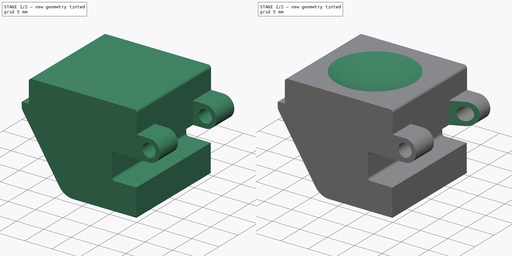
[diagram: build sequence overview — one tinted view per stage of 2, left to right]
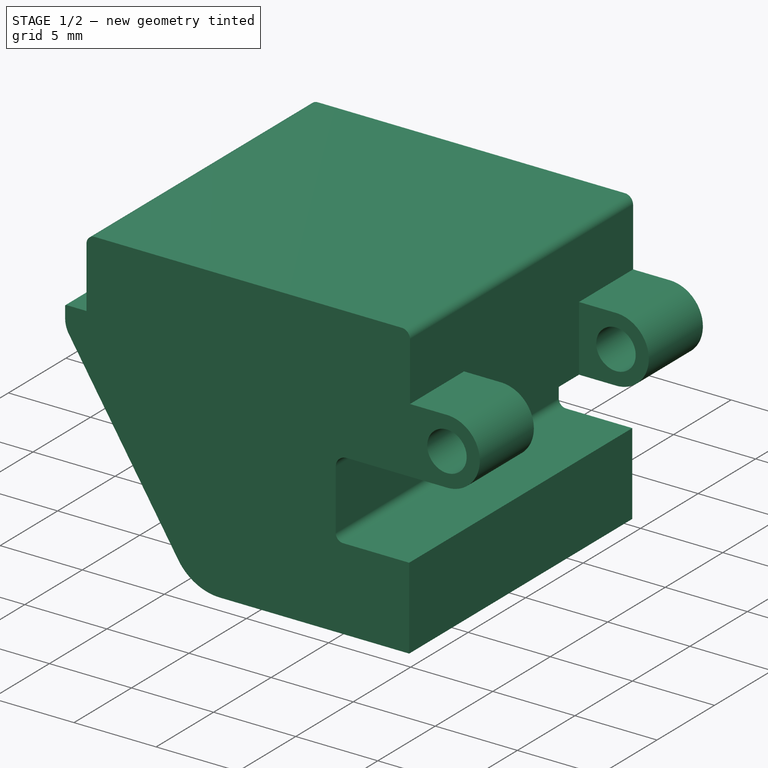
[diagram: stage 1 of 2 — iso view after this stage's code; geometry added in this stage tinted green]
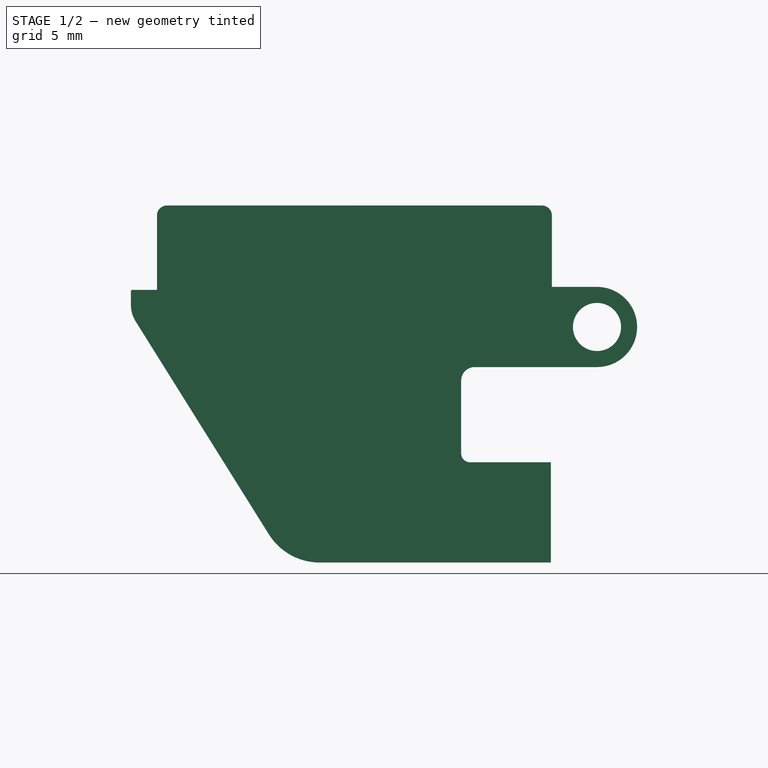
[diagram: stage 1 of 2 — front view after this stage's code; geometry added in this stage tinted green]
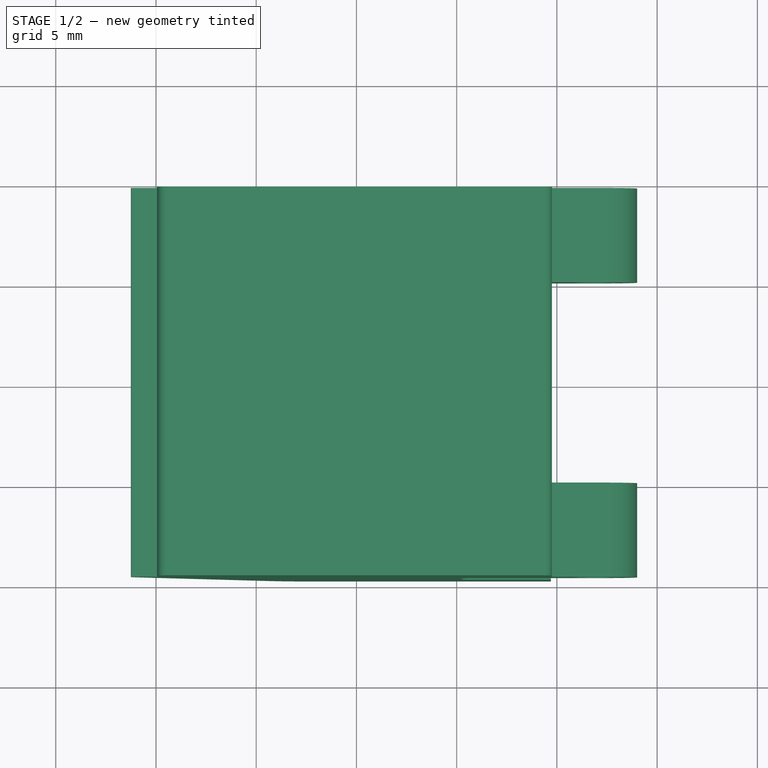
[diagram: stage 1 of 2 — top view after this stage's code; geometry added in this stage tinted green]
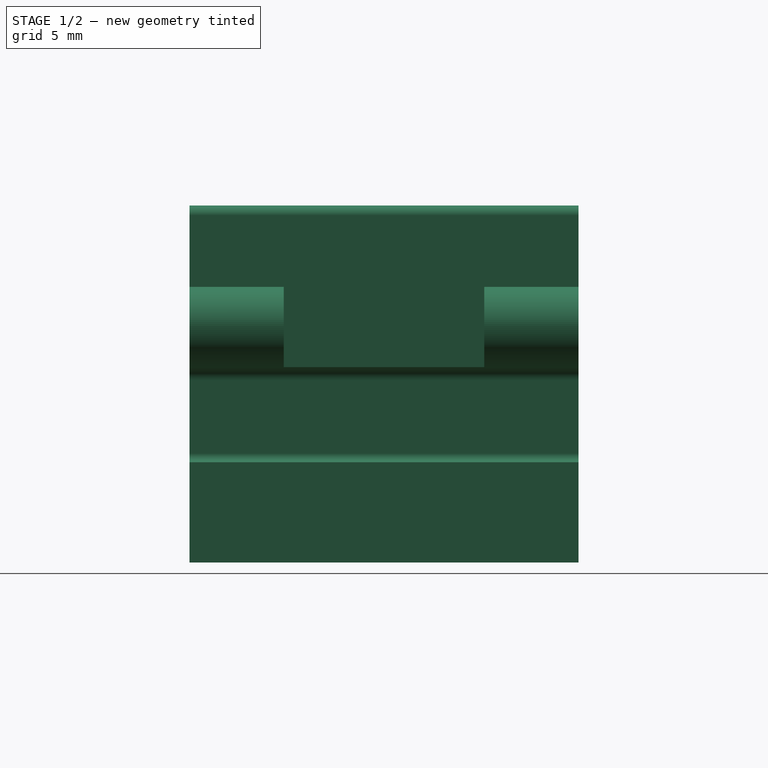
[diagram: stage 1 of 2 — right view after this stage's code; geometry added in this stage tinted green]
FCSTD DOCUMENT  (FreeCAD 1.0R39109 (Git))
Label: button
License: All rights reserved
LicenseURL: https://en.wikipedia.org/wiki/All_rights_reserved
objects: Sketcher::SketchObject×4, PartDesign::Pocket×2, PartDesign::Pad×1, PartDesign::Line×1, PartDesign::Groove×1, PartDesign::Body×1
note: 22 computed .brp shape members not serialized (recipe doc carries the construction recipe); baked Part::Feature solids carry a one-line shape summary decoded from their .brp

FEATURE [Sketcher::SketchObject] Sketch
  ArcFitTolerance = 1e-06
  AttachmentSupport = -> [XZ_Plane]
  FullyConstrained = false
  MakeInternals = false
  MapMode = 5
  Placement = pos=(0,0,0) rot=(1,0,0;1.5708rad)
  sketch-geometry (30):
    g0: LineSegment StartX=-0.75 StartY=3.81199 StartZ=0 EndX=-19.45 EndY=3.81199 EndZ=0
    g1: LineSegment StartX=-19.95 StartY=3.31199 StartZ=0 EndX=-19.95 EndY=-0.4 EndZ=0
    g2: LineSegment StartX=-19.95 StartY=-0.4 StartZ=0 EndX=-21.1852 EndY=-0.4 EndZ=0
    g3: LineSegment StartX=-21.25 StartY=-0.464826 StartZ=0 EndX=-21.25 EndY=-1.15858 EndZ=0
    g4: LineSegment StartX=-21.0199 StartY=-1.96044 StartZ=0 EndX=-14.3689 EndY=-12.5926 EndZ=0
    g5: LineSegment StartX=-11.8285 StartY=-14 StartZ=0 EndX=-0.3 EndY=-14 EndZ=0
    g6: LineSegment StartX=-0.3 StartY=-14 StartZ=0 EndX=-0.3 EndY=-9 EndZ=0
    g7: LineSegment StartX=-0.3 StartY=-9 StartZ=0 EndX=-4.3276 EndY=-9 EndZ=0
    g8: LineSegment StartX=-4.10345 StartY=-4.25 StartZ=0 EndX=0 EndY=-4.25 EndZ=0
    g9: LineSegment StartX=0 StartY=-4.25 StartZ=0 EndX=2 EndY=-4.25 EndZ=0
    g10: LineSegment [constr] StartX=2 StartY=-4.25 StartZ=0 EndX=2 EndY=-0.25 EndZ=0
    g11: ArcOfCircle CenterX=2 CenterY=-2.25 CenterZ=0 NormalX=0 NormalY=0 NormalZ=1 AngleXU=0 Radius=2 StartAngle=4.71239 EndAngle=7.85398
    g12: Circle CenterX=2 CenterY=-2.25 CenterZ=0 NormalX=0 NormalY=0 NormalZ=1 AngleXU=0 Radius=1.2
    g13: LineSegment StartX=-0.25 StartY=3.31199 StartZ=0 EndX=-0.25 EndY=-0.25 EndZ=0
    g14: LineSegment StartX=-0.25 StartY=-0.25 StartZ=0 EndX=2 EndY=-0.25 EndZ=0
    g15: LineSegment StartX=-4.7752 StartY=-4.92175 StartZ=0 EndX=-4.7752 EndY=-8.55239 EndZ=0
    g16: ArcOfCircle CenterX=-4.10345 CenterY=-4.92175 CenterZ=0 NormalX=0 NormalY=0 NormalZ=1 AngleXU=0 Radius=0.671751 StartAngle=1.5708 EndAngle=3.14159
    g17: GeomPoint [constr] X=-4.7752 Y=-4.25 Z=0
    g18: ArcOfCircle CenterX=-4.3276 CenterY=-8.55239 CenterZ=0 NormalX=0 NormalY=0 NormalZ=1 AngleXU=0 Radius=0.447607 StartAngle=3.14159 EndAngle=4.71239
    g19: GeomPoint [constr] X=-4.7752 Y=-9 Z=0
    g20: ArcOfCircle CenterX=-19.45 CenterY=3.31199 CenterZ=0 NormalX=0 NormalY=0 NormalZ=1 AngleXU=0 Radius=0.5 StartAngle=1.5708 EndAngle=3.14159
    g21: GeomPoint [constr] X=-19.95 Y=3.81199 Z=0
    g22: ArcOfCircle CenterX=-0.75 CenterY=3.31199 CenterZ=0 NormalX=0 NormalY=0 NormalZ=1 AngleXU=0 Radius=0.5 StartAngle=0 EndAngle=1.5708
    g23: GeomPoint [constr] X=-0.25 Y=3.81199 Z=0
    g24: ArcOfCircle CenterX=-21.1852 CenterY=-0.464826 CenterZ=0 NormalX=0 NormalY=0 NormalZ=1 AngleXU=0 Radius=0.0648262 StartAngle=1.5708 EndAngle=3.14159
    g25: GeomPoint [constr] X=-21.25 Y=-0.4 Z=0
    g26: ArcOfCircle CenterX=-19.738 CenterY=-1.15858 CenterZ=0 NormalX=0 NormalY=0 NormalZ=1 AngleXU=0 Radius=1.51199 StartAngle=3.14159 EndAngle=3.70059
    g27: GeomPoint [constr] X=-21.25 Y=-1.59254 Z=0
    g28: ArcOfCircle CenterX=-11.8285 CenterY=-11.0035 CenterZ=0 NormalX=0 NormalY=0 NormalZ=1 AngleXU=0 Radius=2.99654 StartAngle=3.70059 EndAngle=4.71239
    g29: GeomPoint [constr] X=-13.4885 Y=-14 Z=0
  constraints (65):
    c: Horizontal(g0)
    c: Vertical(g1)
    c: Coincident(g1,g2)
    c: Vertical(g3)
    c: Horizontal(g5)
    c: Coincident(g5,g6)
    c: Vertical(g6)
    c: Coincident(g6,g7)
    c: Horizontal(g7)
    c: PointOnObject(g8,g-2)
    c: Horizontal(g8)
    c: Coincident(g8,g9)
    c: Horizontal(g9)
    c: Coincident(g10,g9)
    c: Vertical(g10)
    c: Symmetric(g10,g10,g11)
    c: Coincident(g11,g9)
    c: Coincident(g12,g11)
    c: Diameter(g12) = 2.4
    c: Vertical(g13)
    c: Coincident(g13,g14)
    c: Horizontal(g14)
    c: DistanceY(g13) = -0.25
    c: Diameter(g11) = 4
    c: DistanceX(g10) = 2
    c: Tangent(g14,g11) = 1.5708
    c: DistanceX(g13) = -0.25
    c: DistanceX(g21,g23) = 19.7
    c: DistanceX(g25,g2) = 1.3
    c: DistanceY(g6) = -9
    c: DistanceY(g6,g6) = 5
    c: Vertical(g15)
    c: DistanceX(g-2,g6) = -0.3
    c: PointOnObject(g17,g8)
    c: PointOnObject(g17,g15)
    c: Tangent(g8,g16) = 1.5708
    c: Tangent(g15,g16) = -1.5708
    c: PointOnObject(g19,g7)
    c: PointOnObject(g19,g15)
    c: Tangent(g7,g18) = 1.5708
    c: Tangent(g15,g18) = -1.5708
    c: Horizontal(g2)
    c: PointOnObject(g21,g0)
    c: PointOnObject(g21,g1)
    c: Tangent(g0,g20) = -1.5708
    c: Tangent(g1,g20) = -1.5708
    c: PointOnObject(g23,g0)
    c: PointOnObject(g23,g13)
    c: Tangent(g0,g22) = -1.5708
    c: Tangent(g13,g22) = 1.5708
    c: PointOnObject(g25,g2)
    c: PointOnObject(g25,g3)
    c: Tangent(g2,g24) = -1.5708
    c: Tangent(g3,g24) = -1.5708
    c: PointOnObject(g27,g3)
    c: PointOnObject(g27,g4)
    c: Tangent(g3,g26) = -1.5708
    c: Tangent(g4,g26) = -1.5708
    c: PointOnObject(g29,g4)
    c: PointOnObject(g29,g5)
    c: Tangent(g4,g28) = -1.5708
    c: Tangent(g5,g28) = -1.5708
    c: Equal(g22,g20)
    c: Radius(g20) = 0.5
    c: Distance(g13,g2) = 0.15
FEATURE [PartDesign::Pad] Pad
  Direction = (0,-1,2e-16)
  Length = 19.4
  Length2 = 10
  Midplane = true
  Placement = pos=(0,0,0) rot=(1,0,0;1.5708rad)
  Profile = -> Sketch
  ReferenceAxis = -> Sketch [N_Axis]
  Refine = true
  Suppressed = false
  Type = 0
FEATURE [Sketcher::SketchObject] Sketch001
  ArcFitTolerance = 1e-06
  AttachmentSupport = -> [XZ_Plane]
  FullyConstrained = false
  MakeInternals = false
  MapMode = 5
  Placement = pos=(0,0,0) rot=(1,0,0;1.5708rad)
  sketch-geometry (4):
    g0: LineSegment StartX=-0.25 StartY=0.843394 StartZ=0 EndX=-0.25 EndY=-5.84801 EndZ=0
    g1: LineSegment StartX=-0.25 StartY=-5.84801 StartZ=0 EndX=4.81107 EndY=-5.84801 EndZ=0
    g2: LineSegment StartX=4.81107 StartY=-5.84801 StartZ=0 EndX=4.81107 EndY=0.843394 EndZ=0
    g3: LineSegment StartX=4.81107 StartY=0.843394 StartZ=0 EndX=-0.25 EndY=0.843394 EndZ=0
  constraints (9):
    c: Coincident(g0,g1)
    c: Coincident(g1,g2)
    c: Coincident(g2,g3)
    c: Coincident(g3,g0)
    c: Vertical(g0)
    c: Vertical(g2)
    c: Horizontal(g1)
    c: Horizontal(g3)
    c: DistanceX(g0) = -0.25
FEATURE [PartDesign::Pocket] Pocket
  BaseFeature = -> Pad
  Direction = (0,1,-2e-16)
  Length = 10
  Length2 = 5
  Midplane = true
  Placement = pos=(0,0,0) rot=(1,0,0;1.5708rad)
  Profile = -> Sketch001
  ReferenceAxis = -> Sketch001 [N_Axis]
  Refine = true
  Suppressed = false
  Type = 0
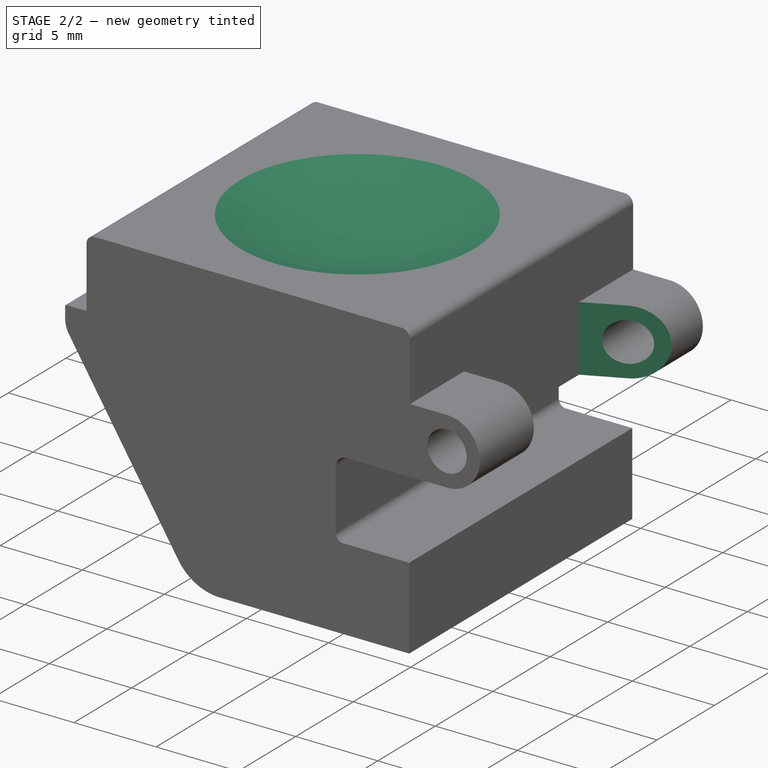
[diagram: stage 2 of 2 — iso view after this stage's code; geometry added in this stage tinted green]
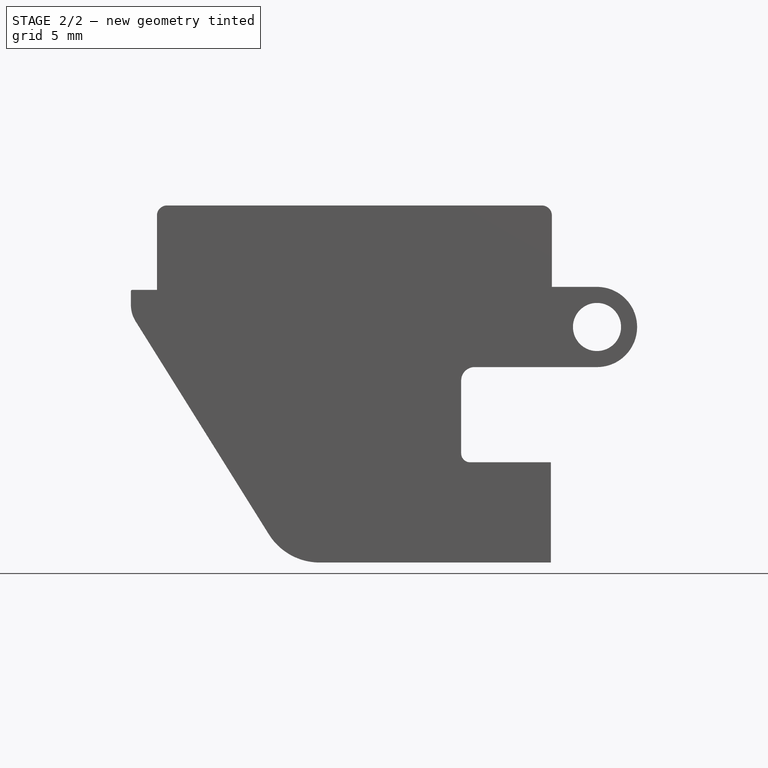
[diagram: stage 2 of 2 — front view after this stage's code; geometry added in this stage tinted green]
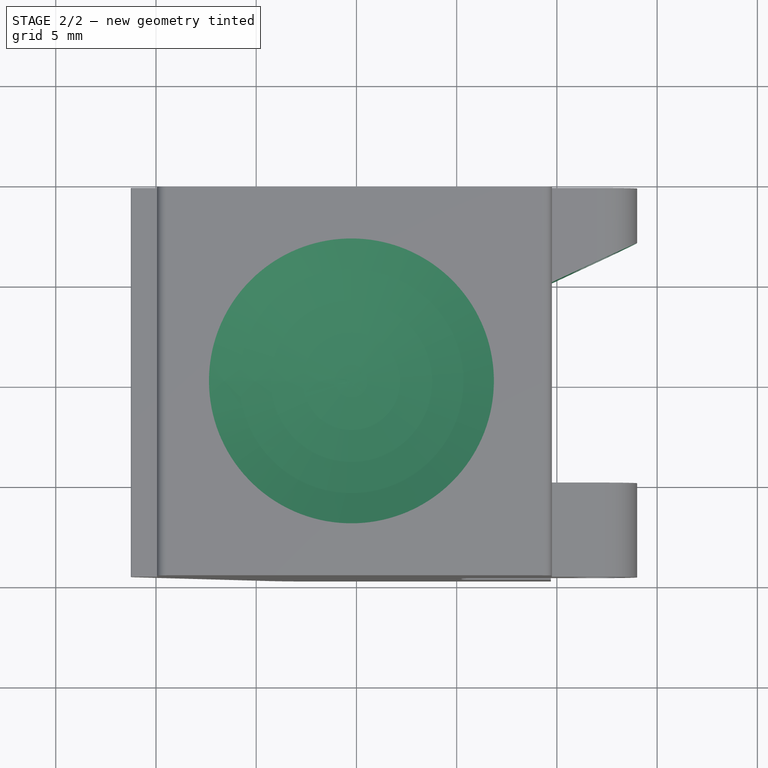
[diagram: stage 2 of 2 — top view after this stage's code; geometry added in this stage tinted green]
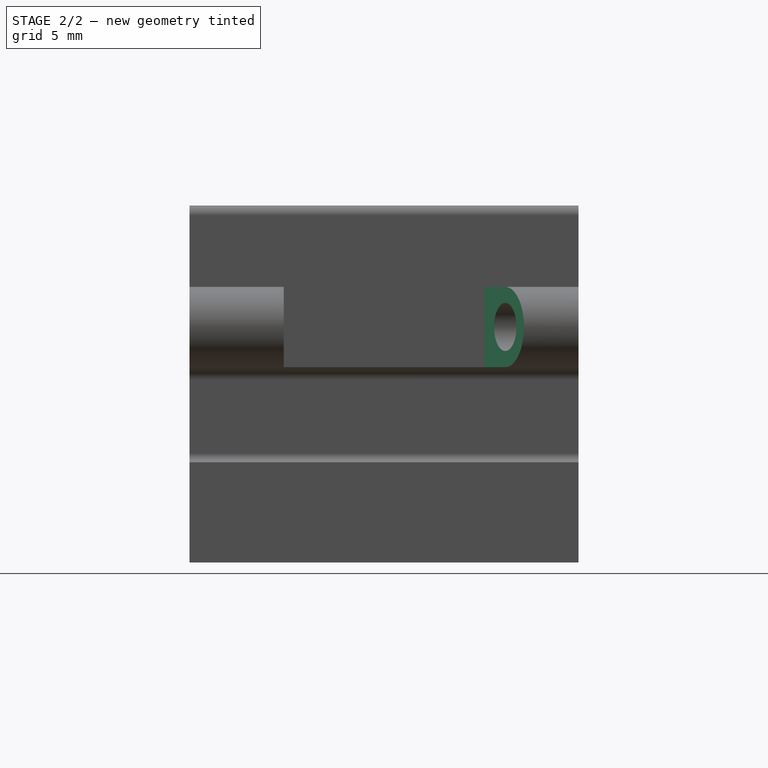
[diagram: stage 2 of 2 — right view after this stage's code; geometry added in this stage tinted green]
FEATURE [PartDesign::Line] DatumLine
  AttacherType = Attacher::AttachEngineLine
  AttachmentOffset = pos=(-10.25,0,0) rot=(0,0,1;0rad)
  AttachmentSupport = -> [Z_Axis]
  Length = 20
  MapMode = 29
  Placement = pos=(-10.25,0,0) rot=(0,0,1;0rad)
  ResizeMode = 0
FEATURE [Sketcher::SketchObject] Sketch002
  ArcFitTolerance = 1e-06
  AttachmentSupport = -> [XZ_Plane]
  FullyConstrained = false
  MakeInternals = false
  MapMode = 5
  Placement = pos=(0,0,0) rot=(1,0,0;1.5708rad)
  sketch-geometry (2):
    g0: ArcOfCircle CenterX=-10.1842 CenterY=20.0312 CenterZ=0 NormalX=0 NormalY=0 NormalZ=1 AngleXU=0 Radius=17.7341 StartAngle=1.57451 EndAngle=4.70868
    g1: LineSegment StartX=-10.25 StartY=37.7652 StartZ=0 EndX=-10.25 EndY=2.29726 EndZ=0
  constraints (4):
    c: Coincident(g1,g0)
    c: Coincident(g1,g0)
    c: Vertical(g1)
    c: DistanceX(g0) = -10.25
FEATURE [PartDesign::Groove] Groove
  Angle = 360
  Angle2 = 60
  Axis = (0,0,1)
  Base = (-10.25,0,0)
  BaseFeature = -> Pocket
  Placement = pos=(0,0,0) rot=(1,0,0;1.5708rad)
  Profile = -> Sketch002
  ReferenceAxis = -> DatumLine
  Refine = true
  Reversed = true
  Suppressed = false
  Type = 0
FEATURE [Sketcher::SketchObject] Sketch003
  ArcFitTolerance = 1e-06
  AttachmentSupport = -> [XY_Plane]
  FullyConstrained = false
  MakeInternals = false
  MapMode = 5
  sketch-geometry (5):
    g0: LineSegment [constr] StartX=-0.25 StartY=5 StartZ=0 EndX=-0.25 EndY=7.63295 EndZ=0
    g1: LineSegment [constr] StartX=-0.25 StartY=7.63295 StartZ=0 EndX=5.39639 EndY=7.63295 EndZ=0
    g2: LineSegment StartX=5.39639 StartY=7.63295 StartZ=0 EndX=-0.25 EndY=5 EndZ=0
    g3: LineSegment StartX=-0.25 StartY=5 StartZ=0 EndX=5.39639 EndY=5 EndZ=0
    g4: LineSegment StartX=5.39639 StartY=5 StartZ=0 EndX=5.39639 EndY=7.63295 EndZ=0
  constraints (13):
    c: Vertical(g0)
    c: Coincident(g0,g1)
    c: Horizontal(g1)
    c: Coincident(g1,g2)
    c: Coincident(g2,g0)
    c: DistanceX(g0) = -0.25
    c: Angle(g2,g0) = 1.13446
    c: Coincident(g0,g3)
    c: Horizontal(g3)
    c: Coincident(g3,g4)
    c: Coincident(g4,g1)
    c: DistanceY(g0) = 5
    c: Vertical(g4)
FEATURE [PartDesign::Pocket] Pocket001
  BaseFeature = -> Groove
  Direction = (0,0,-1)
  Length = 5
  Length2 = 5
  Placement = pos=(0,0,0) rot=(1,0,0;1.5708rad)
  Profile = -> Sketch003
  ReferenceAxis = -> Sketch003 [N_Axis]
  Refine = true
  Suppressed = false
  Type = 0
FEATURE [PartDesign::Body] Body
  AllowCompound = false
  Group = -> [Sketch,Pad,Sketch001,Pocket,DatumLine,Sketch002,Groove,Sketch003,Pocket001]
  Origin = -> Origin
  Tip = -> Pocket001
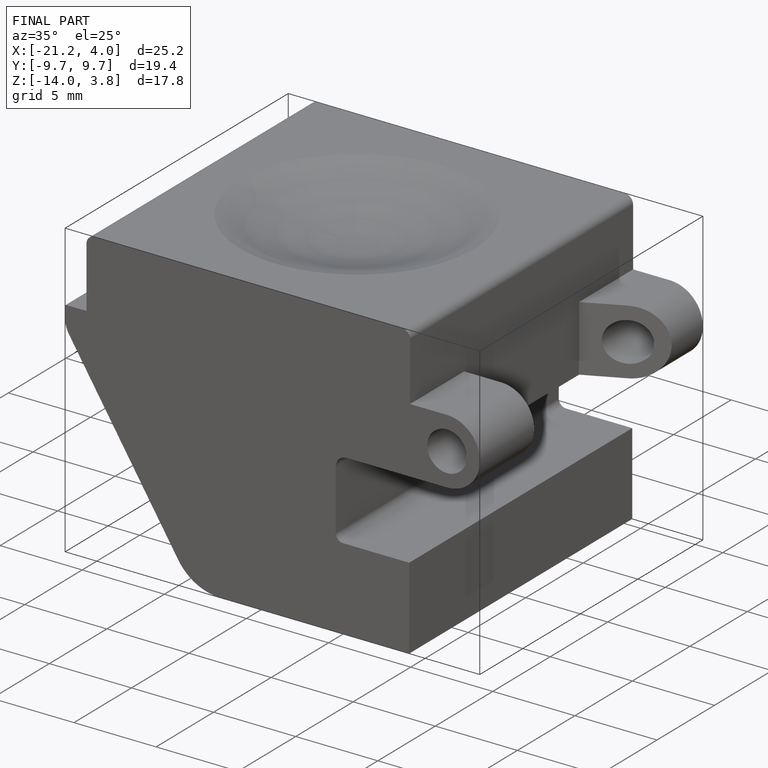
[diagram: finished part — iso view with bounding-box wireframe]
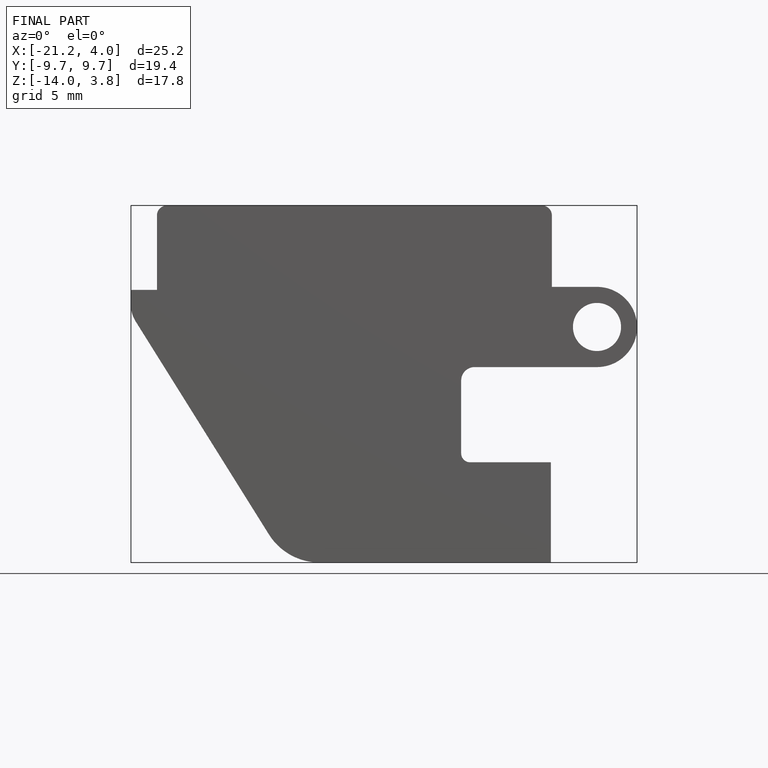
[diagram: finished part — front view with bounding-box wireframe]
